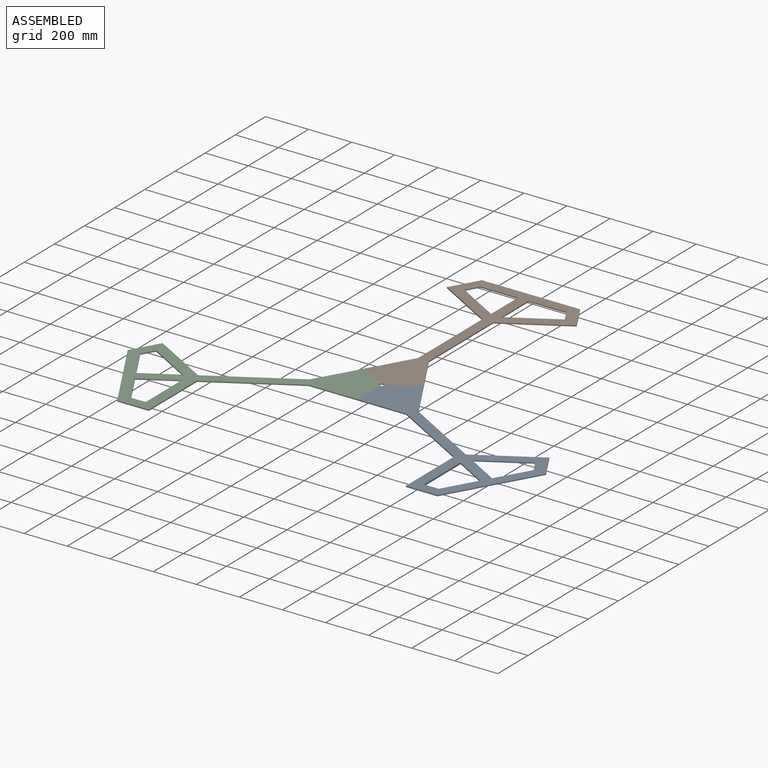
[diagram: assembled view]
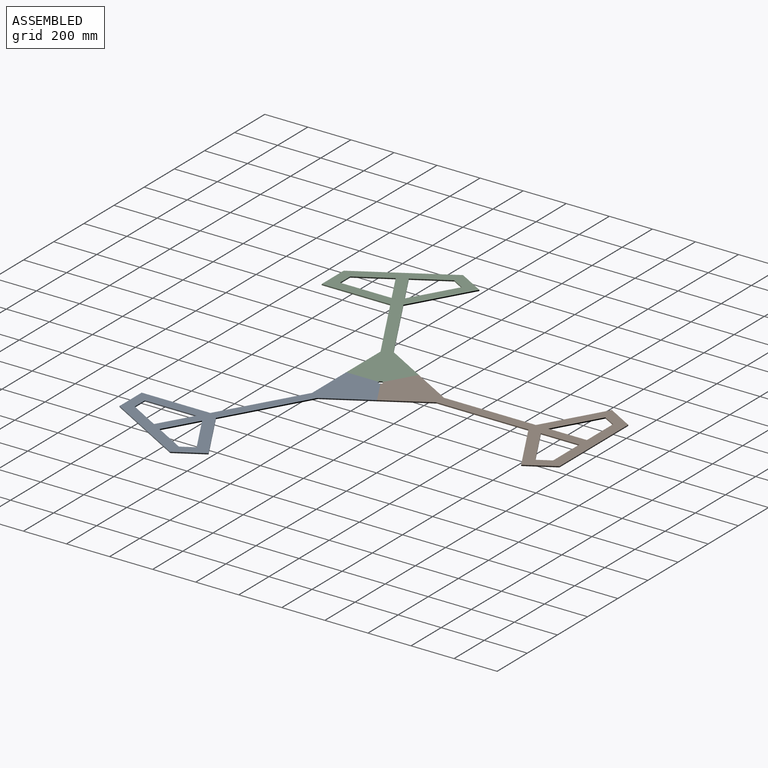
[diagram: assembled view, second angle]
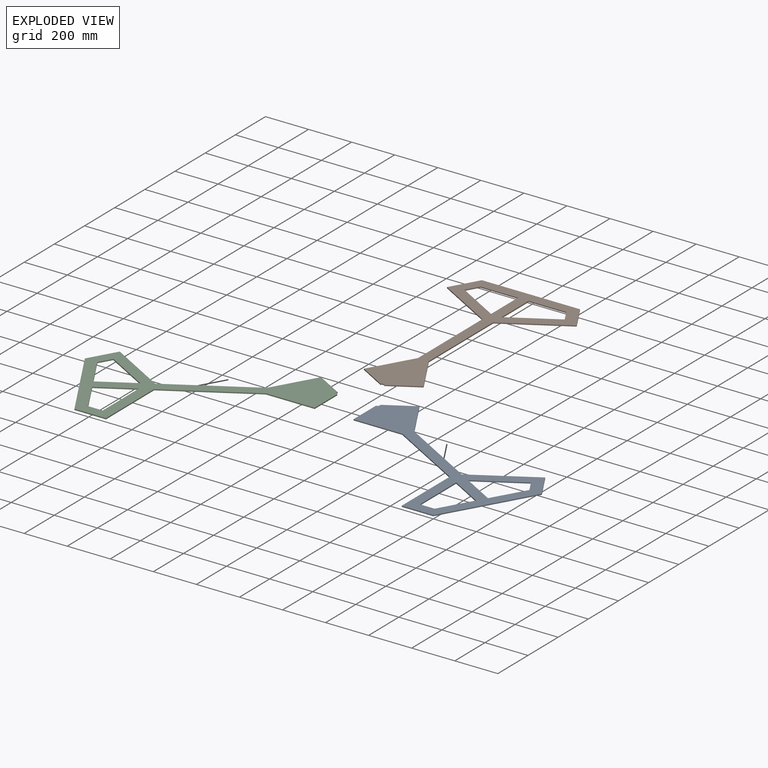
[diagram: exploded view]
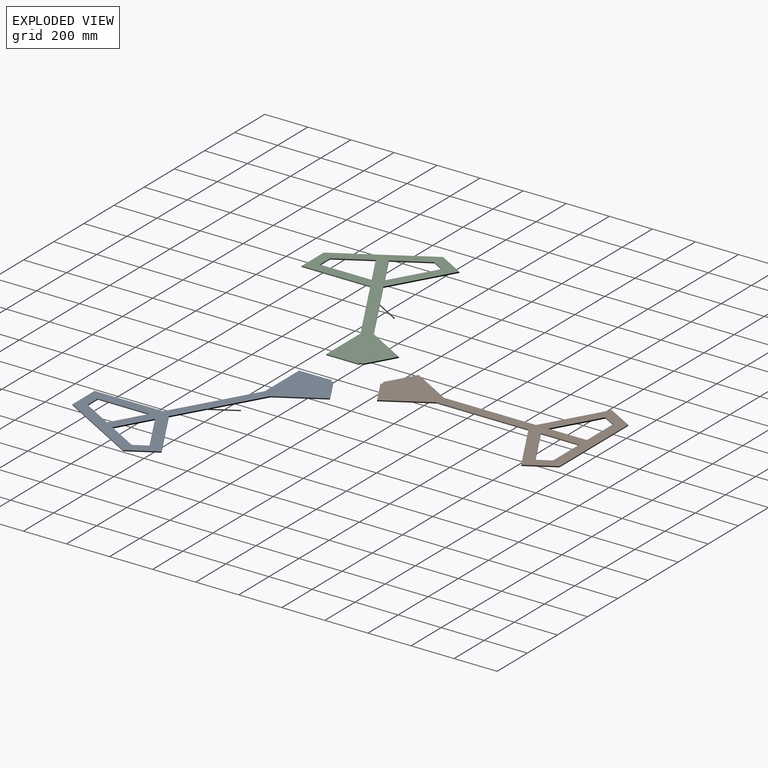
[diagram: exploded view, second angle]
ASSEMBLY  parts=3 mates=6
PART A: 24 faces, bbox 602.3x985x5 mm
  f0: plane 58.72x33.9mm, normal (0.87,0.5,0), area 339mm2, adj f1,f11,f12,f13
  f1: plane 207.86x120.01mm, normal (0.5,-0.87,0), area 1200.1mm2, adj f0,f2,f12,f13
  f2: plane 178.73x5mm, normal (-1,0,0), area 893.6mm2, adj f1,f11,f12,f13
  f3: plane 11.55x5mm, normal (0,1,0), area 57.7mm2, adj f4,f12,f13,f17
  f4: plane 5x5mm, normal (0.87,0.5,0), area 28.9mm2, adj f3,f5,f12,f13
  f5: plane 129.9x75mm, normal (-0.5,0.87,0), area 750mm2, adj f4,f6,f12,f13
  f6: plane 196.7x113.56mm, normal (-0.87,-0.5,0), area 1135.6mm2, adj f5,f7,f12,f13
  f7: plane 426.84x5mm, normal (-1,0,0), area 2134.2mm2, adj f6,f8,f12,f13
  f8: plane 276.17x159.44mm, normal (-0.5,0.87,0), area 1594.4mm2, adj f7,f9,f12,f13
  f9: plane 127.02x73.33mm, normal (-0.87,-0.5,0), area 733.3mm2, adj f8,f10,f12,f13
  f10: plane 455.66x5mm, normal (0,-1,0), area 2278.3mm2, adj f9,f12,f13,f22
  f11: plane 173.96x5mm, normal (0,1,0), area 869.8mm2, adj f0,f2,f12,f13
  f12: plane 985x602.33mm, normal (0,0,1), area 136316.4mm2, adj f0,f1,f2,f3,f4,f5,f6,f7
  f13: plane 985x602.33mm, normal (0,0,-1), area 136316.4mm2, adj f0,f1,f2,f3,f4,f5,f6,f7
  f14: plane 58.72x33.9mm, normal (-0.87,0.5,0), area 339mm2, adj f12,f13,f15,f23
  f15: plane 207.86x120.01mm, normal (-0.5,-0.87,0), area 1200.1mm2, adj f12,f13,f14,f16
  f16: plane 178.73x5mm, normal (1,0,0), area 893.6mm2, adj f12,f13,f15,f23
  f17: plane 5x5mm, normal (-0.87,0.5,0), area 28.9mm2, adj f3,f12,f13,f18
  f18: plane 129.9x75mm, normal (0.5,0.87,0), area 750mm2, adj f12,f13,f17,f19
  f19: plane 196.7x113.56mm, normal (0.87,-0.5,0), area 1135.6mm2, adj f12,f13,f18,f20
  f20: plane 426.84x5mm, normal (1,0,0), area 2134.2mm2, adj f12,f13,f19,f21
  f21: plane 276.17x159.44mm, normal (0.5,0.87,0), area 1594.4mm2, adj f12,f13,f20,f22
  f22: plane 127.02x73.33mm, normal (0.87,-0.5,0), area 733.3mm2, adj f10,f12,f13,f21
  f23: plane 173.96x5mm, normal (0,1,0), area 869.8mm2, adj f12,f13,f14,f16
PART B: same geometry as A
PART C: same geometry as A
PLACE A rot(axis=(0,0,1),60deg) t=(0.63,-0.54,-213.72)mm
PLACE B rot(axis=(0,0,1),180deg) t=(0.63,-0.54,-213.72)mm fixed
PLACE C rot(axis=(0,0,-1),60deg) t=(0.63,-0.54,-213.72)mm
MATE planar B.f5 <-> A.f18  axis (0.5,-0.87,0) through (74.25,41.96,-211.22)mm
MATE planar B.f18 <-> C.f5  axis (-0.5,-0.87,0) through (-8.03,4.46,-211.22)mm
MATE planar C.f4 <-> B.f17  axis (0.87,-0.5,0) through (-8.03,4.46,-211.22)mm
MATE planar A.f12 <-> B.f12  axis (0,0,1) through (74.25,41.96,-208.72)mm
MATE planar B.f4 <-> A.f17  axis (-0.87,-0.5,0) through (9.29,4.46,-211.22)mm
MATE planar A.f13 <-> C.f13  axis (0,0,-1) through (0.63,-85.54,-213.72)mm
